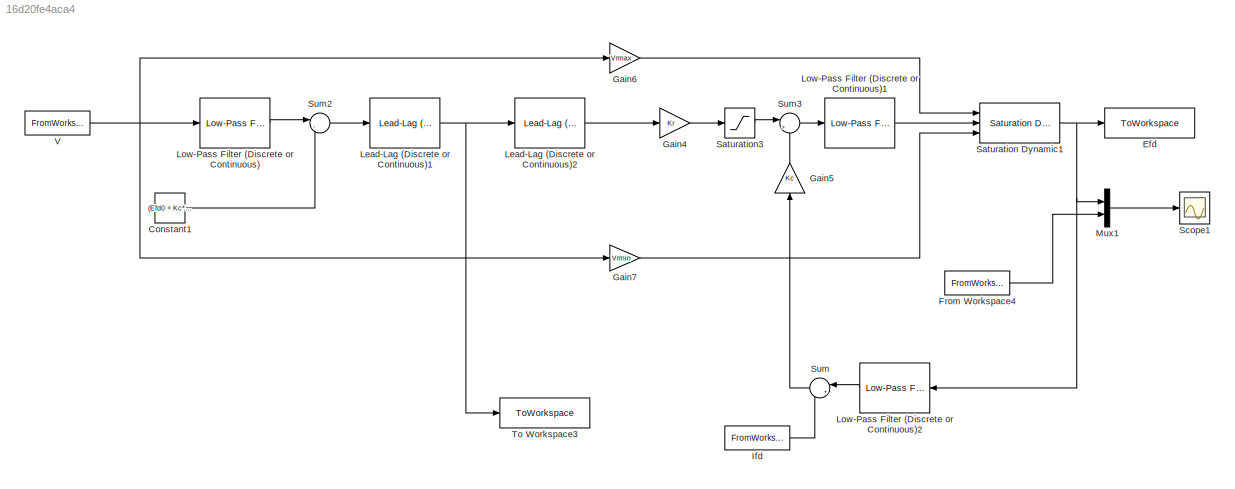
MODEL slx_16d20fe4aca4
KIND model
CONFIG AbsTol = auto
CONFIG EnableMultiTasking = off
CONFIG FixedStep = 0.005
CONFIG MaxStep = auto
CONFIG MinStep = auto
CONFIG RelTol = 1e-3
CONFIG SampleTimeConstraint = Unconstrained
CONFIG Solver = FixedStepAuto
CONFIG SolverName = FixedStepAuto
CONFIG StartTime = 0.0
CONFIG StopTime = 4.5
BLOCK [Constant] Constant1
  Value = (Efd0 + Kc*XadIfd)/Kr + Vinit
BLOCK [ToWorkspace] Efd
  FixptAsFi = on
  MaxDataPoints = inf
  Ports = [1]
  SampleTime = -1
  SaveFormat = Timeseries
  VariableName = Efd
BLOCK [FromWorkspace] From Workspace4
  VariableName = Efd_plot
BLOCK [Gain] Gain4
  Gain = Kr
BLOCK [Gain] Gain5
  Gain = Kc
BLOCK [Gain] Gain6
  Gain = Vrmax
BLOCK [Gain] Gain7
  Gain = Vrmin
BLOCK [FromWorkspace] Ifd
  VariableName = [time, r]
BLOCK [Reference] Lead-Lag (Discrete or Continuous)1  REF=eeGeneralControl/Lead-Lag
(Discrete or Continuous)
  Ports = [1, 1]
  SourceBlock = eeGeneralControl/Lead-Lag\n(Discrete or Continuous)
  SourceProductBaseCode = PS
  SourceType = Lead-Lag (Discrete or Continuous)
BLOCK [Reference] Lead-Lag (Discrete or Continuous)2  REF=eeGeneralControl/Lead-Lag
(Discrete or Continuous)
  Ports = [1, 1]
  SourceBlock = eeGeneralControl/Lead-Lag\n(Discrete or Continuous)
  SourceProductBaseCode = PS
  SourceType = Lead-Lag (Discrete or Continuous)
BLOCK [Reference] Low-Pass Filter (Discrete or Continuous)  REF=eeGeneralControl/Low-Pass Filter
(Discrete or Continuous)
  Ports = [1, 1]
  SourceBlock = eeGeneralControl/Low-Pass Filter\n(Discrete or Continuous)
  SourceProductBaseCode = PS
  SourceType = Low-Pass Filter (Discrete or Continuous)
BLOCK [Reference] Low-Pass Filter (Discrete or Continuous)1  REF=eeGeneralControl/Low-Pass Filter
(Discrete or Continuous)
  Ports = [1, 1]
  SourceBlock = eeGeneralControl/Low-Pass Filter\n(Discrete or Continuous)
  SourceProductBaseCode = PS
  SourceType = Low-Pass Filter (Discrete or Continuous)
BLOCK [Reference] Low-Pass Filter (Discrete or Continuous)2  REF=eeGeneralControl/Low-Pass Filter
(Discrete or Continuous)
  Ports = [1, 1]
  SourceBlock = eeGeneralControl/Low-Pass Filter\n(Discrete or Continuous)
  SourceProductBaseCode = PS
  SourceType = Low-Pass Filter (Discrete or Continuous)
BLOCK [Mux] Mux1
  DisplayOption = bar
  Inputs = 2
  Ports = [2, 1]
BLOCK [Reference] Saturation Dynamic1  REF=simulink/Discontinuities/Saturation
Dynamic
  Ports = [3, 1]
  SourceBlock = simulink/Discontinuities/Saturation\nDynamic
  SourceProductBaseCode = SL
  SourceType = Saturation Dynamic
BLOCK [Saturate] Saturation3
  LinearizeAsGain = off
  LowerLimit = Vrmin
  UpperLimit = Vrmax
BLOCK [Scope] Scope1
  Floating = off
  NumInputPorts = 1
  Ports = [1]
  ScopeSpecificationString = Simulink.scopes.TimeScopeBlockCfg('CurrentConfiguration', extmgr.ConfigurationSet(extmgr.Configuration('Core','General UI',true,'FigureColor',[1 1 1]),extmgr.Configuration('Core','Source UI',true),extmgr.Configuration('Sources','WiredSimulink',true,'DataLoggingVariableName','ScopeData1'),extmgr.Configuration('Visuals','Time Domain',true,'SerializedDisplays',{struct('MinYLimReal','-15.03998','MaxYL...<+1455ch>
BLOCK [Sum] Sum
  Inputs = |++
  Ports = [2, 1]
BLOCK [Sum] Sum2
  Inputs = |-+
  Ports = [2, 1]
BLOCK [Sum] Sum3
  Inputs = |+-
  Ports = [2, 1]
BLOCK [ToWorkspace] To Workspace3
  FixptAsFi = on
  MaxDataPoints = inf
  Ports = [1]
  SampleTime = -1
  SaveFormat = Timeseries
  VariableName = simout
BLOCK [FromWorkspace] V
  VariableName = [time,V]
LINE Constant1:1 -> Sum2:2
LINE From Workspace4:1 -> Mux1:2
LINE Gain4:1 -> Saturation3:1
LINE Gain5:1 -> Sum3:2
LINE Gain6:1 -> Saturation Dynamic1:1
LINE Gain7:1 -> Saturation Dynamic1:3
LINE Ifd:1 -> Sum:2
NET Lead-Lag (Discrete or Continuous)1:1 -> Lead-Lag (Discrete or Continuous)2:1, To Workspace3:1
LINE Lead-Lag (Discrete or Continuous)2:1 -> Gain4:1
LINE Low-Pass Filter (Discrete or Continuous)1:1 -> Saturation Dynamic1:2
LINE Low-Pass Filter (Discrete or Continuous)2:1 -> Sum:1
LINE Low-Pass Filter (Discrete or Continuous):1 -> Sum2:1
LINE Mux1:1 -> Scope1:1
NET Saturation Dynamic1:1 -> Efd:1, Low-Pass Filter (Discrete or Continuous)2:1, Mux1:1
LINE Saturation3:1 -> Sum3:1
LINE Sum2:1 -> Lead-Lag (Discrete or Continuous)1:1
LINE Sum3:1 -> Low-Pass Filter (Discrete or Continuous)1:1
LINE Sum:1 -> Gain5:1
NET V:1 -> Gain6:1, Gain7:1, Low-Pass Filter (Discrete or Continuous):1
note: NET lines group one-source signal fan-out (src -> all destinations, sorted); 1:1 wires keep LINE
